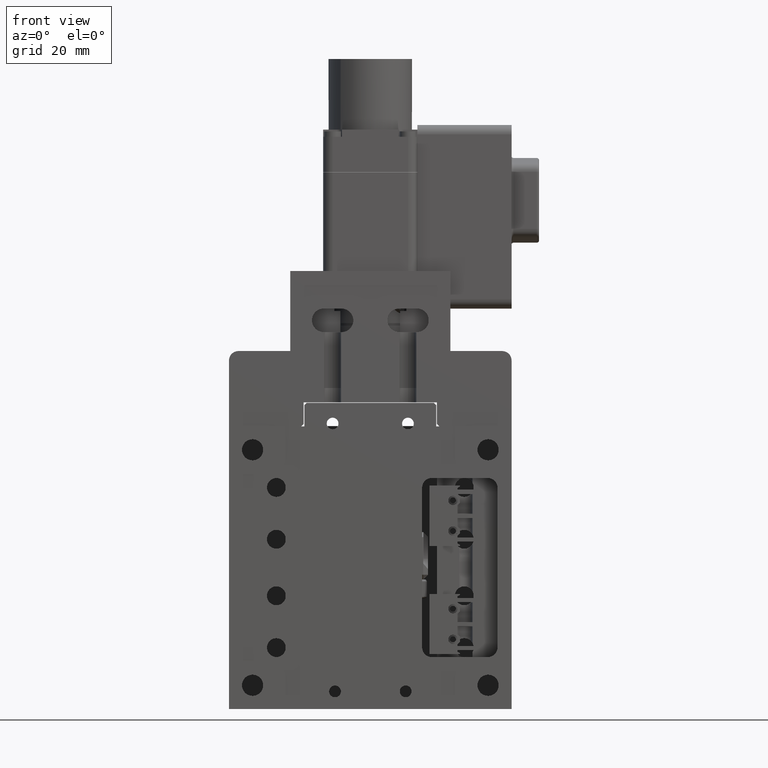
[diagram: clean part render]
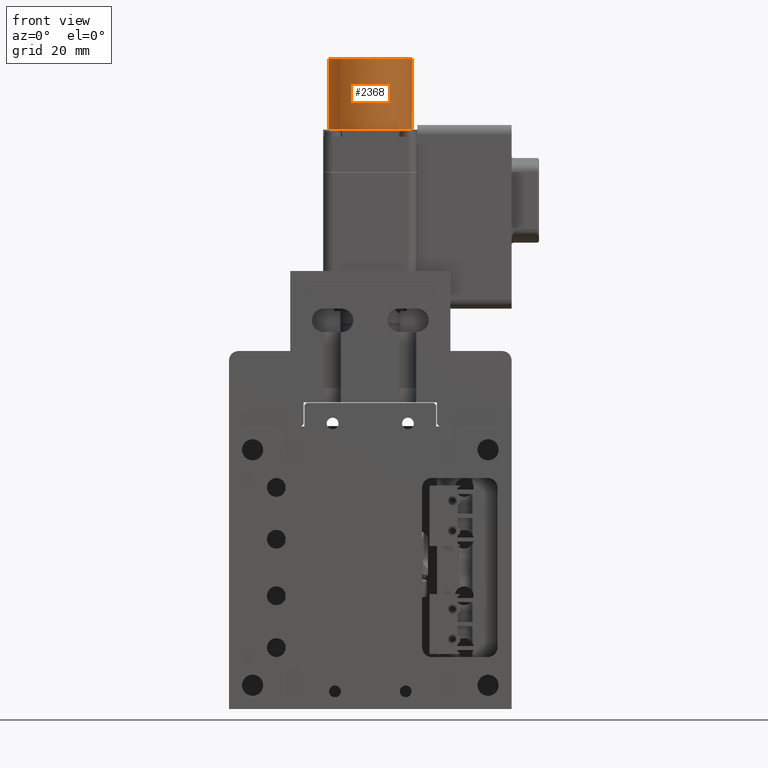
[diagram: same view with one face highlighted and labeled with its STEP entity id]
A machine part, front view. The second image highlights one B-rep face of the part: STEP entity #2368.
In plain terms, the highlighted cylindrical surface (bore or boss wall) has radius 8.8995 mm, axis along (0, -0, -1).
Its self-contained STEP definition (entity closure, byte-faithful):
#79 = CARTESIAN_POINT ( 'NONE',  ( -2.591719598807695313, -2.448187545985848868, 170.4999999999999716 ) ) ;
#195 = CARTESIAN_POINT ( 'NONE',  ( -2.591719598807694425, -2.448187545985849756, 155.5000000000000000 ) ) ;
#297 = DIRECTION ( 'NONE',  ( -6.888773939819757311E-17, 7.259004801913014904E-17, 1.000000000000000000 ) ) ;
#362 = FACE_OUTER_BOUND ( 'NONE', #12458, .T. ) ;
#1805 = CARTESIAN_POINT ( 'NONE',  ( -2.591719598807513680, 6.451307390625867555, 170.4999999999999716 ) ) ;
#2180 = DIRECTION ( 'NONE',  ( -6.888773939819757311E-17, 7.259004801913014904E-17, 1.000000000000000000 ) ) ;
#2368 = ADVANCED_FACE ( 'NONE', ( #362, #6066 ), #11667, .T. ) ;
#2796 = EDGE_LOOP ( 'NONE', ( #9580, #15062, #9214, #10716 ) ) ;
#3494 = VERTEX_POINT ( 'NONE', #9457 ) ;
#4110 = DIRECTION ( 'NONE',  ( -6.888773939819757311E-17, 7.259004801913014904E-17, 1.000000000000000000 ) ) ;
#4144 = CIRCLE ( 'NONE', #5042, 8.899494936611716867 ) ;
#4309 = EDGE_CURVE ( 'NONE', #11703, #11703, #12678, .T. ) ;
#4571 = DIRECTION ( 'NONE',  ( 6.888773939819757311E-17, -7.259004801913014904E-17, -1.000000000000000000 ) ) ;
#4622 = AXIS2_PLACEMENT_3D ( 'NONE', #11058, #5538, #5450 ) ;
#5042 = AXIS2_PLACEMENT_3D ( 'NONE', #12515, #4110, #5692 ) ;
#5391 = CIRCLE ( 'NONE', #6584, 8.899494936611716867 ) ;
#5407 = EDGE_CURVE ( 'NONE', #7374, #3494, #5391, .T. ) ;
#5450 = DIRECTION ( 'NONE',  ( 2.041826928413910791E-14, 1.000000000000000000, 0.000000000000000000 ) ) ;
#5538 = DIRECTION ( 'NONE',  ( -6.888773939819757311E-17, 7.259004801913014904E-17, 1.000000000000000000 ) ) ;
#5682 = AXIS2_PLACEMENT_3D ( 'NONE', #79, #4571, #11397 ) ;
#5692 = DIRECTION ( 'NONE',  ( 2.041826928413910791E-14, 1.000000000000000000, 0.000000000000000000 ) ) ;
#6066 = FACE_OUTER_BOUND ( 'NONE', #2796, .T. ) ;
#6252 = ORIENTED_EDGE ( 'NONE', *, *, #4309, .F. ) ;
#6383 = CARTESIAN_POINT ( 'NONE',  ( -2.591719598807694425, -2.448187545985849756, 155.5000000000000000 ) ) ;
#6584 = AXIS2_PLACEMENT_3D ( 'NONE', #14585, #297, #7504 ) ;
#7374 = VERTEX_POINT ( 'NONE', #8368 ) ;
#7504 = DIRECTION ( 'NONE',  ( 2.041826928413910791E-14, 1.000000000000000000, 0.000000000000000000 ) ) ;
#8368 = CARTESIAN_POINT ( 'NONE',  ( 3.701173620005675069, -8.741080764799475489, 155.5000000000000000 ) ) ;
#8976 = AXIS2_PLACEMENT_3D ( 'NONE', #6383, #2180, #9382 ) ;
#9146 = AXIS2_PLACEMENT_3D ( 'NONE', #195, #11597, #13185 ) ;
#9214 = ORIENTED_EDGE ( 'NONE', *, *, #5407, .T. ) ;
#9382 = DIRECTION ( 'NONE',  ( 2.041826928413910791E-14, 1.000000000000000000, 0.000000000000000000 ) ) ;
#9457 = CARTESIAN_POINT ( 'NONE',  ( 3.701173620005929976, 3.844705672827506859, 155.5000000000000000 ) ) ;
#9580 = ORIENTED_EDGE ( 'NONE', *, *, #12174, .T. ) ;
#10492 = EDGE_CURVE ( 'NONE', #12691, #7374, #13912, .T. ) ;
#10716 = ORIENTED_EDGE ( 'NONE', *, *, #14131, .T. ) ;
#11021 = CIRCLE ( 'NONE', #8976, 8.899494936611716867 ) ;
#11058 = CARTESIAN_POINT ( 'NONE',  ( -2.591719598807695313, -2.448187545985848868, 170.4999999999999716 ) ) ;
#11397 = DIRECTION ( 'NONE',  ( -2.041826928413910791E-14, -1.000000000000000000, 0.000000000000000000 ) ) ;
#11597 = DIRECTION ( 'NONE',  ( -6.888773939819757311E-17, 7.259004801913014904E-17, 1.000000000000000000 ) ) ;
#11667 = CYLINDRICAL_SURFACE ( 'NONE', #5682, 8.899494936611716867 ) ;
#11703 = VERTEX_POINT ( 'NONE', #1805 ) ;
#11736 = CARTESIAN_POINT ( 'NONE',  ( -8.884612817621297509, -8.741080764799217917, 155.5000000000000000 ) ) ;
#12174 = EDGE_CURVE ( 'NONE', #17454, #12691, #4144, .T. ) ;
#12458 = EDGE_LOOP ( 'NONE', ( #6252 ) ) ;
#12515 = CARTESIAN_POINT ( 'NONE',  ( -2.591719598807694425, -2.448187545985849756, 155.5000000000000000 ) ) ;
#12678 = CIRCLE ( 'NONE', #4622, 8.899494936611716867 ) ;
#12691 = VERTEX_POINT ( 'NONE', #11736 ) ;
#13185 = DIRECTION ( 'NONE',  ( 2.041826928413910791E-14, 1.000000000000000000, 0.000000000000000000 ) ) ;
#13912 = CIRCLE ( 'NONE', #9146, 8.899494936611716867 ) ;
#14131 = EDGE_CURVE ( 'NONE', #3494, #17454, #11021, .T. ) ;
#14585 = CARTESIAN_POINT ( 'NONE',  ( -2.591719598807694425, -2.448187545985849756, 155.5000000000000000 ) ) ;
#15062 = ORIENTED_EDGE ( 'NONE', *, *, #10492, .T. ) ;
#17133 = CARTESIAN_POINT ( 'NONE',  ( -8.884612817621039937, 3.844705672827774645, 155.5000000000000000 ) ) ;
#17454 = VERTEX_POINT ( 'NONE', #17133 ) ;